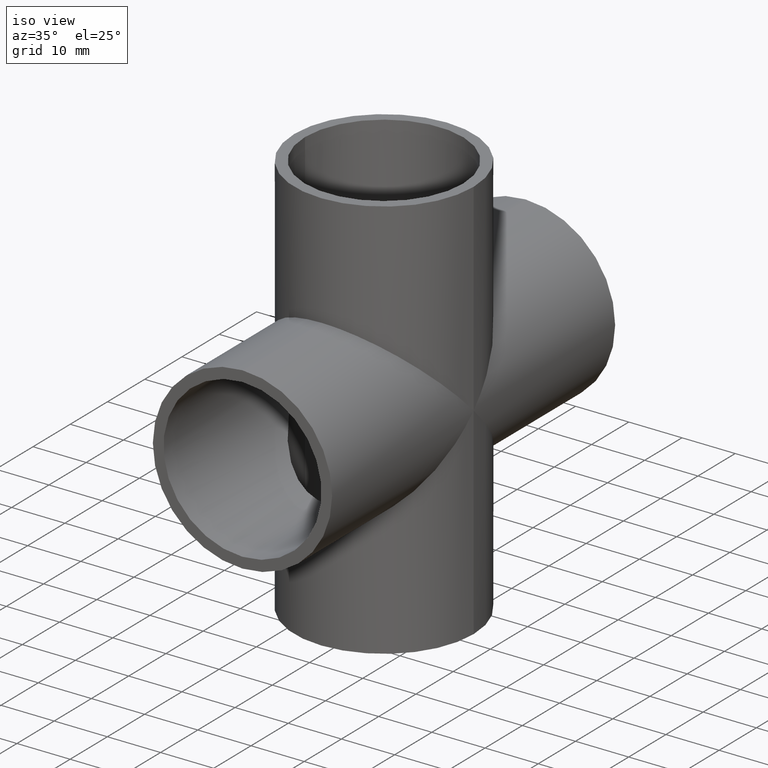
[diagram: clean part render]
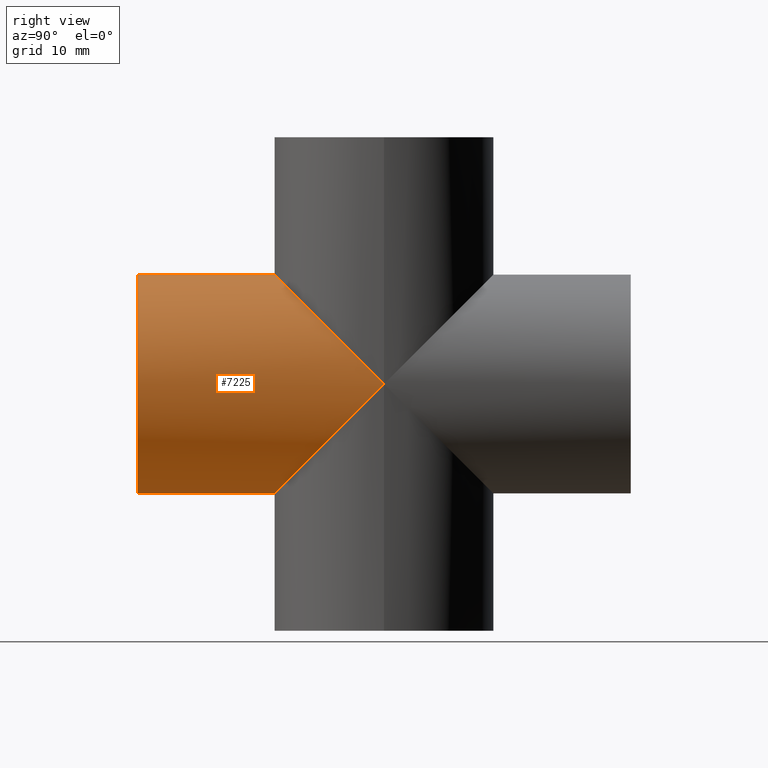
[diagram: tour spotlight — one face highlighted and labeled with its STEP entity id]
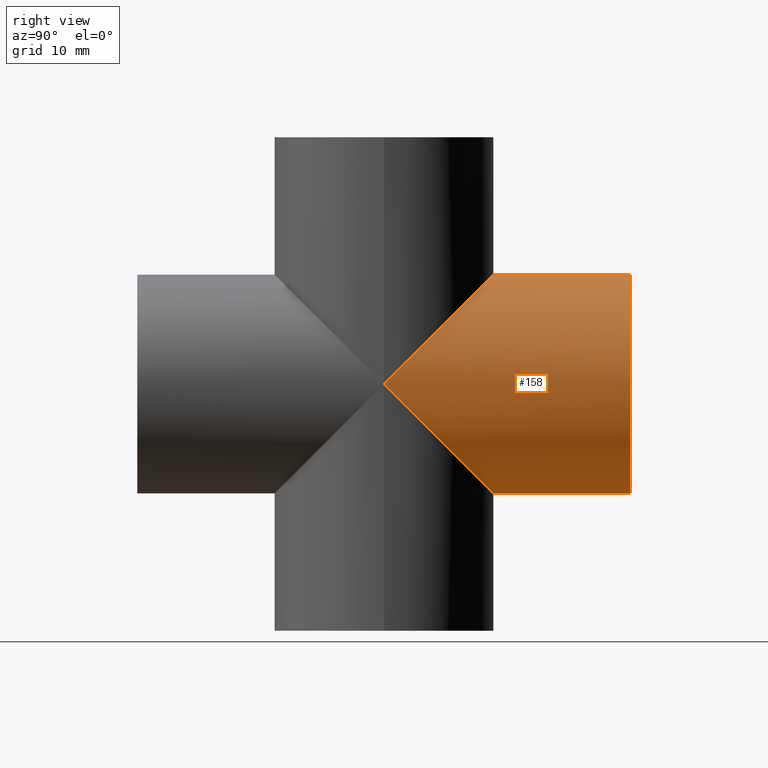
[diagram: tour spotlight — one face highlighted and labeled with its STEP entity id]
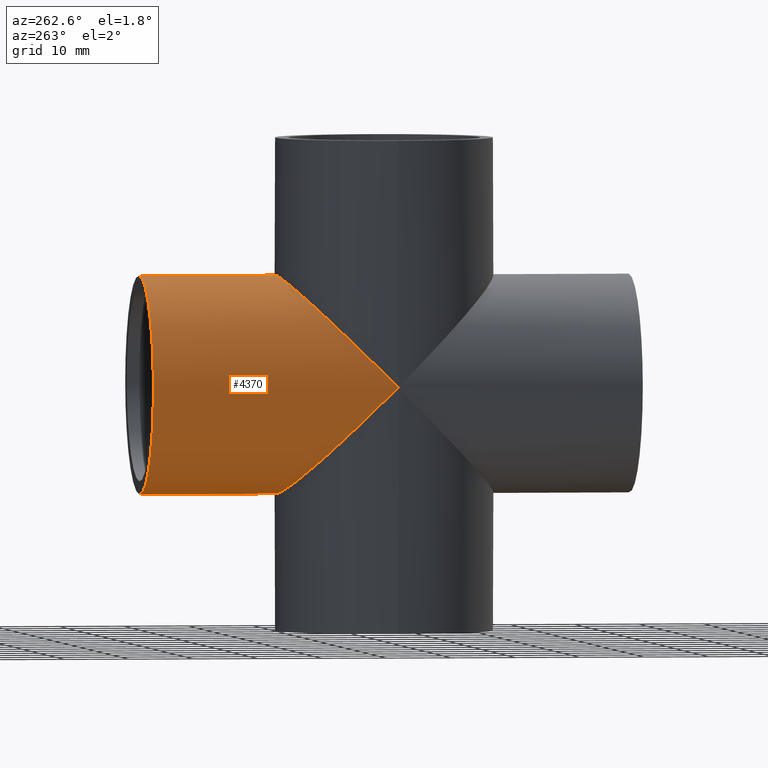
[diagram: tour spotlight — one face highlighted and labeled with its STEP entity id]
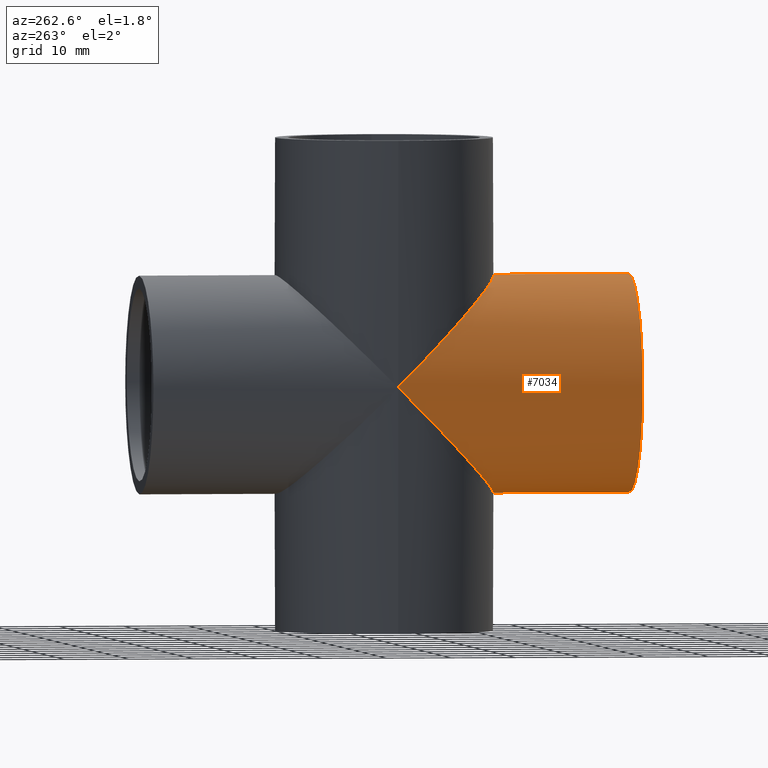
[diagram: tour spotlight — one face highlighted and labeled with its STEP entity id]
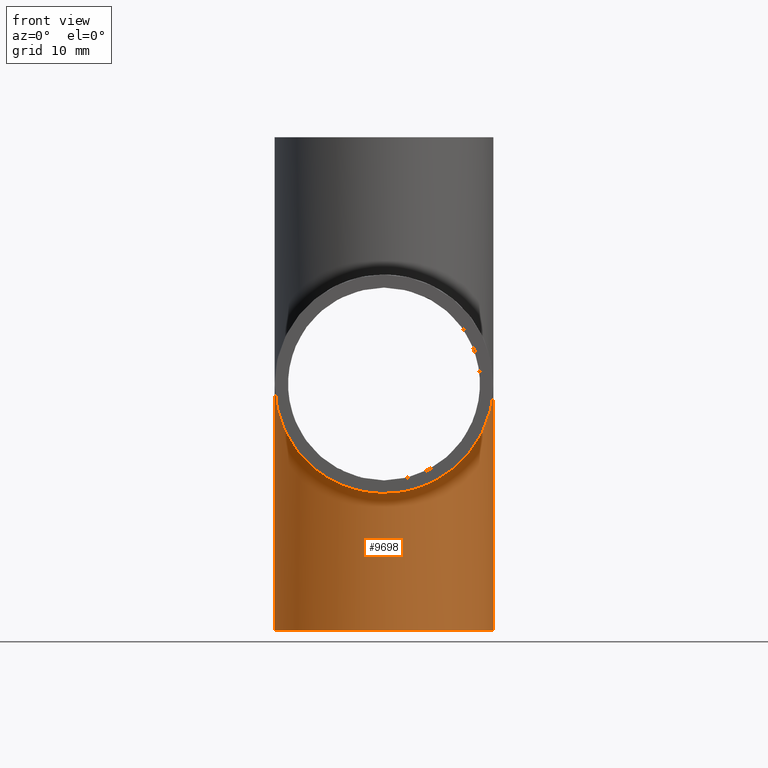
[diagram: tour spotlight — one face highlighted and labeled with its STEP entity id]
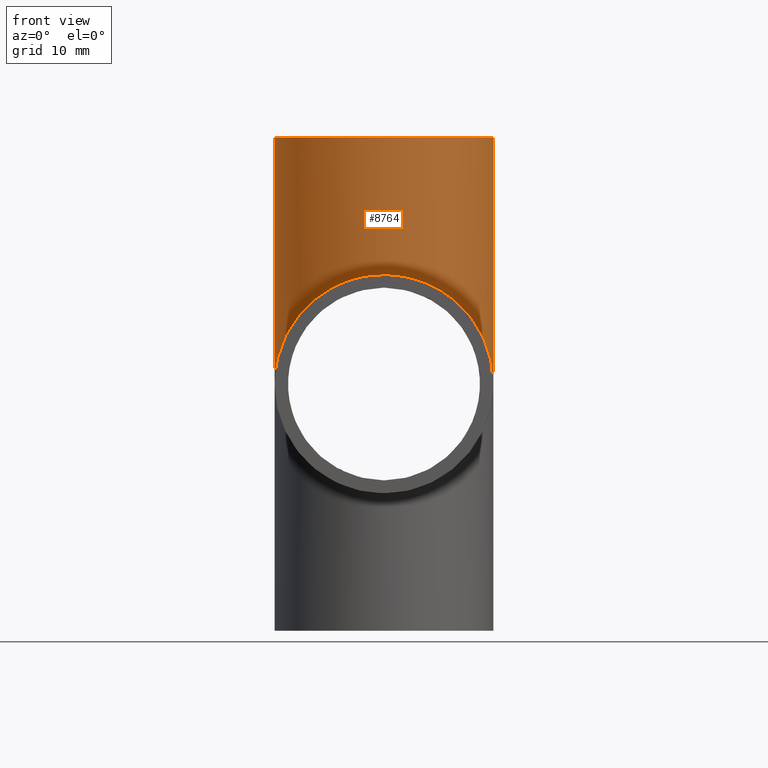
[diagram: tour spotlight — one face highlighted and labeled with its STEP entity id]
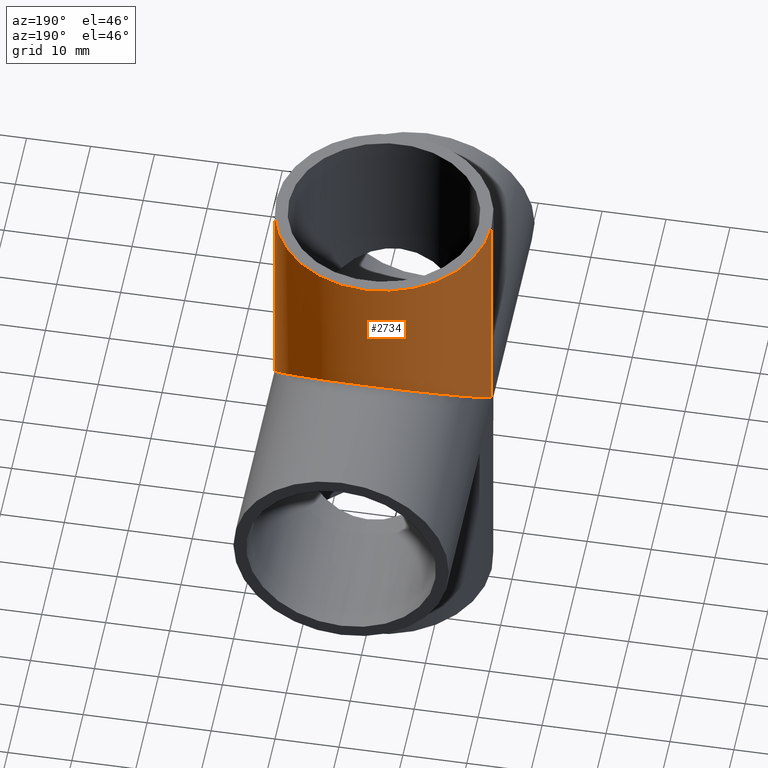
[diagram: tour spotlight — one face highlighted and labeled with its STEP entity id]
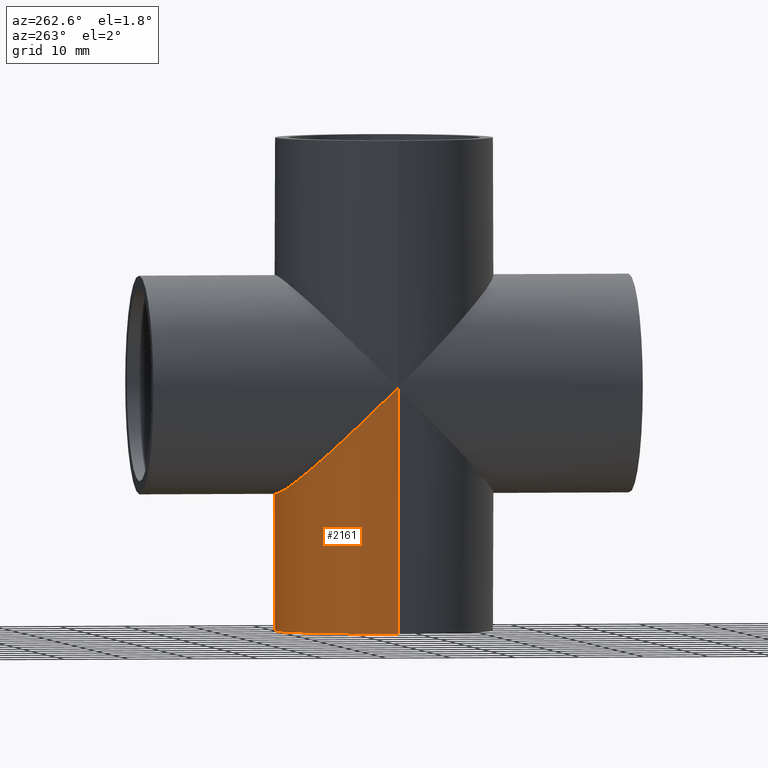
[diagram: tour spotlight — one face highlighted and labeled with its STEP entity id]
A machine part: a face-by-face anatomy tour. The part has 241 B-rep faces; the first image is the clean iso view, then the 8 largest visible faces are spotlighted one at a time (largest first), each with its STEP entity span.

Face 1 — right view, entity #7225. In plain terms, the highlighted cylindrical surface (partial cylindrical patch) has radius 16.85 mm, axis along (-0, -1, -0).
Definition (entity closure, byte-faithful):
#339 = DIRECTION ( 'NONE',  ( 0.0000000000000000000, 0.0000000000000000000, -1.000000000000000000 ) ) ;
#342 = CARTESIAN_POINT ( 'NONE',  ( 16.85000000000000100, -9.870501474013348500, 9.870501474013348500 ) ) ;
#388 = CARTESIAN_POINT ( 'NONE',  ( 16.85000000000000500, 0.0000000000000000000, 0.0000000000000000000 ) ) ;
#866 = DIRECTION ( 'NONE',  ( -0.0000000000000000000, -1.000000000000000000, -0.0000000000000000000 ) ) ;
#1621 = ORIENTED_EDGE ( 'NONE', *, *, #6990, .T. ) ;
#1629 = CARTESIAN_POINT ( 'NONE',  ( 0.0000000000000000000, -38.00000000000000000, 0.0000000000000000000 ) ) ;
#1681 = VERTEX_POINT ( 'NONE', #10968 ) ;
#1865 = DIRECTION ( 'NONE',  ( -0.0000000000000000000, -1.000000000000000000, -0.0000000000000000000 ) ) ;
#1896 = VERTEX_POINT ( 'NONE', #388 ) ;
#2118 = CARTESIAN_POINT ( 'NONE',  ( 9.870501474013352100, -16.85000000000000100, 16.85000000000000100 ) ) ;
#2147 = DIRECTION ( 'NONE',  ( -0.0000000000000000000, -1.000000000000000000, -0.0000000000000000000 ) ) ;
#2514 = DIRECTION ( 'NONE',  ( 0.0000000000000000000, 0.0000000000000000000, 1.000000000000000000 ) ) ;
#2555 = EDGE_LOOP ( 'NONE', ( #5570, #1621, #5529, #5144, #7583 ) ) ;
#3132 = CARTESIAN_POINT ( 'NONE',  ( 2.063529856563290200E-015, -16.85000000000000500, 16.85000000000000100 ) ) ;
#4098 = AXIS2_PLACEMENT_3D ( 'NONE', #1629, #7686, #2514 ) ;
#4136 = EDGE_CURVE ( 'NONE', #10116, #8126, #8016, .T. ) ;
#4262 =( BOUNDED_CURVE ( )  B_SPLINE_CURVE ( 3, ( #7808, #5221, #9596, #4368 ),
 .UNSPECIFIED., .F., .T. ) 
 B_SPLINE_CURVE_WITH_KNOTS ( ( 4, 4 ),
 ( 0.0000000000000000000, 1.570796326794896800 ),
 .UNSPECIFIED. ) 
 CURVE ( )  GEOMETRIC_REPRESENTATION_ITEM ( )  RATIONAL_B_SPLINE_CURVE ( ( 1.000000000000000000, 0.8047378541243649400, 0.8047378541243649400, 1.000000000000000000 ) ) 
 REPRESENTATION_ITEM ( '' )  );
#4368 = CARTESIAN_POINT ( 'NONE',  ( 16.85000000000000500, 0.0000000000000000000, 0.0000000000000000000 ) ) ;
#5144 = ORIENTED_EDGE ( 'NONE', *, *, #10428, .F. ) ;
#5221 = CARTESIAN_POINT ( 'NONE',  ( 9.870501474013352100, -16.85000000000000100, -16.85000000000000100 ) ) ;
#5529 = ORIENTED_EDGE ( 'NONE', *, *, #4136, .T. ) ;
#5570 = ORIENTED_EDGE ( 'NONE', *, *, #11044, .T. ) ;
#5753 = AXIS2_PLACEMENT_3D ( 'NONE', #8198, #2147, #339 ) ;
#6064 = CARTESIAN_POINT ( 'NONE',  ( 0.0000000000000000000, 38.00000000000000000, -16.85000000000000100 ) ) ;
#6229 = LINE ( 'NONE', #8902, #8272 ) ;
#6430 = CARTESIAN_POINT ( 'NONE',  ( 16.85000000000000500, 0.0000000000000000000, 0.0000000000000000000 ) ) ;
#6661 = CYLINDRICAL_SURFACE ( 'NONE', #5753, 16.85000000000000100 ) ;
#6990 = EDGE_CURVE ( 'NONE', #8435, #10116, #6229, .T. ) ;
#6991 = LINE ( 'NONE', #6064, #9348 ) ;
#7225 = ADVANCED_FACE ( 'NONE', ( #9269 ), #6661, .T. ) ;
#7583 = ORIENTED_EDGE ( 'NONE', *, *, #10463, .T. ) ;
#7686 = DIRECTION ( 'NONE',  ( 0.0000000000000000000, 1.000000000000000000, 0.0000000000000000000 ) ) ;
#7741 = CARTESIAN_POINT ( 'NONE',  ( 0.0000000000000000000, -38.00000000000000000, -16.85000000000000100 ) ) ;
#7785 =( BOUNDED_CURVE ( )  B_SPLINE_CURVE ( 3, ( #6430, #342, #2118, #8168 ),
 .UNSPECIFIED., .F., .T. ) 
 B_SPLINE_CURVE_WITH_KNOTS ( ( 4, 4 ),
 ( 1.570796326794896600, 3.141592653589793100 ),
 .UNSPECIFIED. ) 
 CURVE ( )  GEOMETRIC_REPRESENTATION_ITEM ( )  RATIONAL_B_SPLINE_CURVE ( ( 1.000000000000000000, 0.8047378541243649400, 0.8047378541243649400, 1.000000000000000000 ) ) 
 REPRESENTATION_ITEM ( '' )  );
#7808 = CARTESIAN_POINT ( 'NONE',  ( 0.0000000000000000000, -16.85000000000000500, -16.85000000000000100 ) ) ;
#8016 = CIRCLE ( 'NONE', #4098, 16.85000000000000100 ) ;
#8126 = VERTEX_POINT ( 'NONE', #7741 ) ;
#8168 = CARTESIAN_POINT ( 'NONE',  ( 2.063529856563290200E-015, -16.85000000000000500, 16.85000000000000100 ) ) ;
#8198 = CARTESIAN_POINT ( 'NONE',  ( 0.0000000000000000000, 38.00000000000000000, 0.0000000000000000000 ) ) ;
#8272 = VECTOR ( 'NONE', #1865, 1000.000000000000000 ) ;
#8435 = VERTEX_POINT ( 'NONE', #3132 ) ;
#8902 = CARTESIAN_POINT ( 'NONE',  ( 2.063529856563290200E-015, 38.00000000000000000, 16.85000000000000100 ) ) ;
#9269 = FACE_OUTER_BOUND ( 'NONE', #2555, .T. ) ;
#9348 = VECTOR ( 'NONE', #866, 1000.000000000000000 ) ;
#9596 = CARTESIAN_POINT ( 'NONE',  ( 16.85000000000000100, -9.870501474013346800, -9.870501474013346800 ) ) ;
#9915 = CARTESIAN_POINT ( 'NONE',  ( 2.063529856563290200E-015, -38.00000000000000000, 16.85000000000000100 ) ) ;
#10116 = VERTEX_POINT ( 'NONE', #9915 ) ;
#10428 = EDGE_CURVE ( 'NONE', #1681, #8126, #6991, .T. ) ;
#10463 = EDGE_CURVE ( 'NONE', #1681, #1896, #4262, .T. ) ;
#10968 = CARTESIAN_POINT ( 'NONE',  ( 0.0000000000000000000, -16.85000000000000500, -16.85000000000000100 ) ) ;
#11044 = EDGE_CURVE ( 'NONE', #1896, #8435, #7785, .T. ) ;

Face 2 — right view, entity #158. In plain terms, the highlighted cylindrical surface (partial cylindrical patch) has radius 16.85 mm, axis along (-0, -1, -0).
Definition (entity closure, byte-faithful):
#142 = CARTESIAN_POINT ( 'NONE',  ( 16.85000000000000500, 0.0000000000000000000, 0.0000000000000000000 ) ) ;
#158 = ADVANCED_FACE ( 'NONE', ( #7546 ), #2667, .T. ) ;
#180 = CARTESIAN_POINT ( 'NONE',  ( 2.063529856563290200E-015, 38.00000000000000000, 16.85000000000000100 ) ) ;
#388 = CARTESIAN_POINT ( 'NONE',  ( 16.85000000000000500, 0.0000000000000000000, 0.0000000000000000000 ) ) ;
#528 = AXIS2_PLACEMENT_3D ( 'NONE', #8366, #6118, #3582 ) ;
#1014 = CARTESIAN_POINT ( 'NONE',  ( 9.870501474013352100, 16.85000000000000100, -16.85000000000000100 ) ) ;
#1400 = CARTESIAN_POINT ( 'NONE',  ( 0.0000000000000000000, 38.00000000000000000, -16.85000000000000100 ) ) ;
#1611 =( BOUNDED_CURVE ( )  B_SPLINE_CURVE ( 3, ( #2129, #7318, #7358, #2167 ),
 .UNSPECIFIED., .F., .T. ) 
 B_SPLINE_CURVE_WITH_KNOTS ( ( 4, 4 ),
 ( 3.141592653589793100, 4.712388980384689700 ),
 .UNSPECIFIED. ) 
 CURVE ( )  GEOMETRIC_REPRESENTATION_ITEM ( )  RATIONAL_B_SPLINE_CURVE ( ( 1.000000000000000000, 0.8047378541243649400, 0.8047378541243649400, 1.000000000000000000 ) ) 
 REPRESENTATION_ITEM ( '' )  );
#1667 = ORIENTED_EDGE ( 'NONE', *, *, #7766, .F. ) ;
#1896 = VERTEX_POINT ( 'NONE', #388 ) ;
#2129 = CARTESIAN_POINT ( 'NONE',  ( 2.063529856563290200E-015, 16.85000000000000100, 16.85000000000000100 ) ) ;
#2167 = CARTESIAN_POINT ( 'NONE',  ( 16.85000000000000500, 0.0000000000000000000, 0.0000000000000000000 ) ) ;
#2276 = ORIENTED_EDGE ( 'NONE', *, *, #10779, .T. ) ;
#2551 = CIRCLE ( 'NONE', #8361, 16.85000000000000100 ) ;
#2580 = ORIENTED_EDGE ( 'NONE', *, *, #8994, .F. ) ;
#2667 = CYLINDRICAL_SURFACE ( 'NONE', #528, 16.85000000000000100 ) ;
#2751 = VERTEX_POINT ( 'NONE', #4631 ) ;
#2797 = VECTOR ( 'NONE', #7087, 1000.000000000000000 ) ;
#3582 = DIRECTION ( 'NONE',  ( 0.0000000000000000000, 0.0000000000000000000, -1.000000000000000000 ) ) ;
#4242 = DIRECTION ( 'NONE',  ( 0.0000000000000000000, 1.000000000000000000, 0.0000000000000000000 ) ) ;
#4631 = CARTESIAN_POINT ( 'NONE',  ( 2.063529856563290200E-015, 38.00000000000000000, 16.85000000000000100 ) ) ;
#4711 = CARTESIAN_POINT ( 'NONE',  ( 0.0000000000000000000, 38.00000000000000000, -16.85000000000000100 ) ) ;
#5660 = ORIENTED_EDGE ( 'NONE', *, *, #7530, .T. ) ;
#5931 = EDGE_CURVE ( 'NONE', #6901, #1896, #1611, .T. ) ;
#6118 = DIRECTION ( 'NONE',  ( -0.0000000000000000000, -1.000000000000000000, -0.0000000000000000000 ) ) ;
#6205 = CARTESIAN_POINT ( 'NONE',  ( 16.85000000000000500, 9.870501474013346800, -9.870501474013346800 ) ) ;
#6498 = CARTESIAN_POINT ( 'NONE',  ( 0.0000000000000000000, 16.85000000000000100, -16.85000000000000100 ) ) ;
#6765 = VERTEX_POINT ( 'NONE', #6498 ) ;
#6901 = VERTEX_POINT ( 'NONE', #8421 ) ;
#7087 = DIRECTION ( 'NONE',  ( -0.0000000000000000000, -1.000000000000000000, -0.0000000000000000000 ) ) ;
#7090 = CARTESIAN_POINT ( 'NONE',  ( 0.0000000000000000000, 16.85000000000000100, -16.85000000000000100 ) ) ;
#7318 = CARTESIAN_POINT ( 'NONE',  ( 9.870501474013348500, 16.85000000000000100, 16.85000000000000100 ) ) ;
#7358 = CARTESIAN_POINT ( 'NONE',  ( 16.84999999999999800, 9.870501474013353900, 9.870501474013353900 ) ) ;
#7487 = ORIENTED_EDGE ( 'NONE', *, *, #5931, .T. ) ;
#7530 = EDGE_CURVE ( 'NONE', #1896, #6765, #9027, .T. ) ;
#7546 = FACE_OUTER_BOUND ( 'NONE', #8153, .T. ) ;
#7649 = VERTEX_POINT ( 'NONE', #4711 ) ;
#7766 = EDGE_CURVE ( 'NONE', #7649, #6765, #8519, .T. ) ;
#8153 = EDGE_LOOP ( 'NONE', ( #2580, #2276, #7487, #5660, #1667 ) ) ;
#8361 = AXIS2_PLACEMENT_3D ( 'NONE', #9464, #4242, #10333 ) ;
#8366 = CARTESIAN_POINT ( 'NONE',  ( 0.0000000000000000000, 38.00000000000000000, 0.0000000000000000000 ) ) ;
#8421 = CARTESIAN_POINT ( 'NONE',  ( 2.063529856563290200E-015, 16.85000000000000100, 16.85000000000000100 ) ) ;
#8519 = LINE ( 'NONE', #1400, #10584 ) ;
#8994 = EDGE_CURVE ( 'NONE', #2751, #7649, #2551, .T. ) ;
#9027 =( BOUNDED_CURVE ( )  B_SPLINE_CURVE ( 3, ( #142, #6205, #1014, #7090 ),
 .UNSPECIFIED., .F., .F. ) 
 B_SPLINE_CURVE_WITH_KNOTS ( ( 4, 4 ),
 ( 4.712388980384689700, 6.283185307179586200 ),
 .UNSPECIFIED. ) 
 CURVE ( )  GEOMETRIC_REPRESENTATION_ITEM ( )  RATIONAL_B_SPLINE_CURVE ( ( 1.000000000000000000, 0.8047378541243649400, 0.8047378541243649400, 1.000000000000000000 ) ) 
 REPRESENTATION_ITEM ( '' )  );
#9246 = DIRECTION ( 'NONE',  ( -0.0000000000000000000, -1.000000000000000000, -0.0000000000000000000 ) ) ;
#9464 = CARTESIAN_POINT ( 'NONE',  ( 0.0000000000000000000, 38.00000000000000000, 0.0000000000000000000 ) ) ;
#9742 = LINE ( 'NONE', #180, #2797 ) ;
#10333 = DIRECTION ( 'NONE',  ( 0.0000000000000000000, 0.0000000000000000000, 1.000000000000000000 ) ) ;
#10584 = VECTOR ( 'NONE', #9246, 1000.000000000000000 ) ;
#10779 = EDGE_CURVE ( 'NONE', #2751, #6901, #9742, .T. ) ;

Face 3 — auxiliary view, entity #4370. In plain terms, the highlighted cylindrical surface (partial cylindrical patch) has radius 16.85 mm, axis along (-0, -1, -0).
Definition (entity closure, byte-faithful):
#180 = CARTESIAN_POINT ( 'NONE',  ( 2.063529856563290200E-015, 38.00000000000000000, 16.85000000000000100 ) ) ;
#598 = CARTESIAN_POINT ( 'NONE',  ( -16.85000000000000500, 0.0000000000000000000, 0.0000000000000000000 ) ) ;
#1254 = CARTESIAN_POINT ( 'NONE',  ( -16.85000000000000500, 0.0000000000000000000, 0.0000000000000000000 ) ) ;
#1354 = CARTESIAN_POINT ( 'NONE',  ( 2.063529856563290200E-015, 16.85000000000000100, 16.85000000000000100 ) ) ;
#1400 = CARTESIAN_POINT ( 'NONE',  ( 0.0000000000000000000, 38.00000000000000000, -16.85000000000000100 ) ) ;
#1471 = VERTEX_POINT ( 'NONE', #598 ) ;
#1936 = ORIENTED_EDGE ( 'NONE', *, *, #7766, .T. ) ;
#2203 = CARTESIAN_POINT ( 'NONE',  ( -16.85000000000000500, 0.0000000000000000000, 0.0000000000000000000 ) ) ;
#2751 = VERTEX_POINT ( 'NONE', #4631 ) ;
#2797 = VECTOR ( 'NONE', #7087, 1000.000000000000000 ) ;
#2900 =( BOUNDED_CURVE ( )  B_SPLINE_CURVE ( 3, ( #10800, #9059, #6449, #1254 ),
 .UNSPECIFIED., .F., .F. ) 
 B_SPLINE_CURVE_WITH_KNOTS ( ( 4, 4 ),
 ( 0.0000000000000000000, 1.570796326794896800 ),
 .UNSPECIFIED. ) 
 CURVE ( )  GEOMETRIC_REPRESENTATION_ITEM ( )  RATIONAL_B_SPLINE_CURVE ( ( 1.000000000000000000, 0.8047378541243649400, 0.8047378541243649400, 1.000000000000000000 ) ) 
 REPRESENTATION_ITEM ( '' )  );
#3303 = EDGE_LOOP ( 'NONE', ( #10432, #5304, #1936, #9651, #5438 ) ) ;
#3613 = DIRECTION ( 'NONE',  ( -0.0000000000000000000, -1.000000000000000000, -0.0000000000000000000 ) ) ;
#3767 = EDGE_CURVE ( 'NONE', #1471, #6901, #3888, .T. ) ;
#3816 = CIRCLE ( 'NONE', #7066, 16.85000000000000100 ) ;
#3888 =( BOUNDED_CURVE ( )  B_SPLINE_CURVE ( 3, ( #2203, #10904, #6565, #1354 ),
 .UNSPECIFIED., .F., .F. ) 
 B_SPLINE_CURVE_WITH_KNOTS ( ( 4, 4 ),
 ( 1.570796326794896600, 3.141592653589793100 ),
 .UNSPECIFIED. ) 
 CURVE ( )  GEOMETRIC_REPRESENTATION_ITEM ( )  RATIONAL_B_SPLINE_CURVE ( ( 1.000000000000000000, 0.8047378541243649400, 0.8047378541243649400, 1.000000000000000000 ) ) 
 REPRESENTATION_ITEM ( '' )  );
#4295 = CARTESIAN_POINT ( 'NONE',  ( 0.0000000000000000000, 38.00000000000000000, 0.0000000000000000000 ) ) ;
#4370 = ADVANCED_FACE ( 'NONE', ( #6927 ), #9004, .T. ) ;
#4423 = CARTESIAN_POINT ( 'NONE',  ( 0.0000000000000000000, 38.00000000000000000, 0.0000000000000000000 ) ) ;
#4631 = CARTESIAN_POINT ( 'NONE',  ( 2.063529856563290200E-015, 38.00000000000000000, 16.85000000000000100 ) ) ;
#4711 = CARTESIAN_POINT ( 'NONE',  ( 0.0000000000000000000, 38.00000000000000000, -16.85000000000000100 ) ) ;
#5177 = DIRECTION ( 'NONE',  ( 0.0000000000000000000, 0.0000000000000000000, 1.000000000000000000 ) ) ;
#5304 = ORIENTED_EDGE ( 'NONE', *, *, #6528, .F. ) ;
#5438 = ORIENTED_EDGE ( 'NONE', *, *, #3767, .T. ) ;
#6449 = CARTESIAN_POINT ( 'NONE',  ( -16.85000000000000100, 9.870501474013346800, -9.870501474013346800 ) ) ;
#6498 = CARTESIAN_POINT ( 'NONE',  ( 0.0000000000000000000, 16.85000000000000100, -16.85000000000000100 ) ) ;
#6528 = EDGE_CURVE ( 'NONE', #7649, #2751, #3816, .T. ) ;
#6565 = CARTESIAN_POINT ( 'NONE',  ( -9.870501474013352100, 16.85000000000000100, 16.85000000000000100 ) ) ;
#6765 = VERTEX_POINT ( 'NONE', #6498 ) ;
#6901 = VERTEX_POINT ( 'NONE', #8421 ) ;
#6927 = FACE_OUTER_BOUND ( 'NONE', #3303, .T. ) ;
#7066 = AXIS2_PLACEMENT_3D ( 'NONE', #4295, #10398, #5177 ) ;
#7087 = DIRECTION ( 'NONE',  ( -0.0000000000000000000, -1.000000000000000000, -0.0000000000000000000 ) ) ;
#7621 = EDGE_CURVE ( 'NONE', #6765, #1471, #2900, .T. ) ;
#7649 = VERTEX_POINT ( 'NONE', #4711 ) ;
#7766 = EDGE_CURVE ( 'NONE', #7649, #6765, #8519, .T. ) ;
#8152 = AXIS2_PLACEMENT_3D ( 'NONE', #4423, #3613, #10523 ) ;
#8421 = CARTESIAN_POINT ( 'NONE',  ( 2.063529856563290200E-015, 16.85000000000000100, 16.85000000000000100 ) ) ;
#8519 = LINE ( 'NONE', #1400, #10584 ) ;
#9004 = CYLINDRICAL_SURFACE ( 'NONE', #8152, 16.85000000000000100 ) ;
#9059 = CARTESIAN_POINT ( 'NONE',  ( -9.870501474013352100, 16.85000000000000100, -16.85000000000000100 ) ) ;
#9246 = DIRECTION ( 'NONE',  ( -0.0000000000000000000, -1.000000000000000000, -0.0000000000000000000 ) ) ;
#9651 = ORIENTED_EDGE ( 'NONE', *, *, #7621, .T. ) ;
#9742 = LINE ( 'NONE', #180, #2797 ) ;
#10398 = DIRECTION ( 'NONE',  ( 0.0000000000000000000, 1.000000000000000000, 0.0000000000000000000 ) ) ;
#10432 = ORIENTED_EDGE ( 'NONE', *, *, #10779, .F. ) ;
#10523 = DIRECTION ( 'NONE',  ( 0.0000000000000000000, 0.0000000000000000000, -1.000000000000000000 ) ) ;
#10584 = VECTOR ( 'NONE', #9246, 1000.000000000000000 ) ;
#10779 = EDGE_CURVE ( 'NONE', #2751, #6901, #9742, .T. ) ;
#10800 = CARTESIAN_POINT ( 'NONE',  ( 0.0000000000000000000, 16.85000000000000100, -16.85000000000000100 ) ) ;
#10904 = CARTESIAN_POINT ( 'NONE',  ( -16.85000000000000100, 9.870501474013348500, 9.870501474013348500 ) ) ;

Face 4 — auxiliary view, entity #7034. In plain terms, the highlighted cylindrical surface (partial cylindrical patch) has radius 16.85 mm, axis along (-0, -1, -0).
Definition (entity closure, byte-faithful):
#12 = CARTESIAN_POINT ( 'NONE',  ( -16.85000000000000500, 0.0000000000000000000, 0.0000000000000000000 ) ) ;
#233 = CARTESIAN_POINT ( 'NONE',  ( 0.0000000000000000000, -16.85000000000000500, -16.85000000000000100 ) ) ;
#598 = CARTESIAN_POINT ( 'NONE',  ( -16.85000000000000500, 0.0000000000000000000, 0.0000000000000000000 ) ) ;
#808 = AXIS2_PLACEMENT_3D ( 'NONE', #4405, #6138, #941 ) ;
#866 = DIRECTION ( 'NONE',  ( -0.0000000000000000000, -1.000000000000000000, -0.0000000000000000000 ) ) ;
#941 = DIRECTION ( 'NONE',  ( 0.0000000000000000000, 0.0000000000000000000, -1.000000000000000000 ) ) ;
#957 = CARTESIAN_POINT ( 'NONE',  ( -9.870501474013348500, -16.85000000000000100, 16.85000000000000100 ) ) ;
#1471 = VERTEX_POINT ( 'NONE', #598 ) ;
#1502 = EDGE_CURVE ( 'NONE', #8435, #1471, #8061, .T. ) ;
#1660 = ORIENTED_EDGE ( 'NONE', *, *, #10428, .T. ) ;
#1681 = VERTEX_POINT ( 'NONE', #10968 ) ;
#1865 = DIRECTION ( 'NONE',  ( -0.0000000000000000000, -1.000000000000000000, -0.0000000000000000000 ) ) ;
#2339 = EDGE_CURVE ( 'NONE', #1471, #1681, #7569, .T. ) ;
#2578 = CARTESIAN_POINT ( 'NONE',  ( -16.84999999999999800, -9.870501474013353900, 9.870501474013353900 ) ) ;
#3132 = CARTESIAN_POINT ( 'NONE',  ( 2.063529856563290200E-015, -16.85000000000000500, 16.85000000000000100 ) ) ;
#3193 = CARTESIAN_POINT ( 'NONE',  ( 0.0000000000000000000, -38.00000000000000000, 0.0000000000000000000 ) ) ;
#3223 = CARTESIAN_POINT ( 'NONE',  ( 2.063529856563290200E-015, -16.85000000000000500, 16.85000000000000100 ) ) ;
#3306 = ORIENTED_EDGE ( 'NONE', *, *, #6825, .T. ) ;
#4061 = DIRECTION ( 'NONE',  ( 0.0000000000000000000, 0.0000000000000000000, 1.000000000000000000 ) ) ;
#4130 = CARTESIAN_POINT ( 'NONE',  ( -16.85000000000000500, 0.0000000000000000000, 0.0000000000000000000 ) ) ;
#4405 = CARTESIAN_POINT ( 'NONE',  ( 0.0000000000000000000, 38.00000000000000000, 0.0000000000000000000 ) ) ;
#4992 = CARTESIAN_POINT ( 'NONE',  ( -16.85000000000000500, -9.870501474013346800, -9.870501474013346800 ) ) ;
#5115 = AXIS2_PLACEMENT_3D ( 'NONE', #3193, #9303, #4061 ) ;
#5965 = FACE_OUTER_BOUND ( 'NONE', #10087, .T. ) ;
#6064 = CARTESIAN_POINT ( 'NONE',  ( 0.0000000000000000000, 38.00000000000000000, -16.85000000000000100 ) ) ;
#6138 = DIRECTION ( 'NONE',  ( -0.0000000000000000000, -1.000000000000000000, -0.0000000000000000000 ) ) ;
#6229 = LINE ( 'NONE', #8902, #8272 ) ;
#6825 = EDGE_CURVE ( 'NONE', #8126, #10116, #9400, .T. ) ;
#6990 = EDGE_CURVE ( 'NONE', #8435, #10116, #6229, .T. ) ;
#6991 = LINE ( 'NONE', #6064, #9348 ) ;
#6997 = CARTESIAN_POINT ( 'NONE',  ( -9.870501474013352100, -16.85000000000000100, -16.85000000000000100 ) ) ;
#7034 = ADVANCED_FACE ( 'NONE', ( #5965 ), #10080, .T. ) ;
#7569 =( BOUNDED_CURVE ( )  B_SPLINE_CURVE ( 3, ( #12, #4992, #6997, #233 ),
 .UNSPECIFIED., .F., .F. ) 
 B_SPLINE_CURVE_WITH_KNOTS ( ( 4, 4 ),
 ( 4.712388980384689700, 6.283185307179586200 ),
 .UNSPECIFIED. ) 
 CURVE ( )  GEOMETRIC_REPRESENTATION_ITEM ( )  RATIONAL_B_SPLINE_CURVE ( ( 1.000000000000000000, 0.8047378541243649400, 0.8047378541243649400, 1.000000000000000000 ) ) 
 REPRESENTATION_ITEM ( '' )  );
#7741 = CARTESIAN_POINT ( 'NONE',  ( 0.0000000000000000000, -38.00000000000000000, -16.85000000000000100 ) ) ;
#8061 =( BOUNDED_CURVE ( )  B_SPLINE_CURVE ( 3, ( #3223, #957, #2578, #4130 ),
 .UNSPECIFIED., .F., .F. ) 
 B_SPLINE_CURVE_WITH_KNOTS ( ( 4, 4 ),
 ( 3.141592653589793100, 4.712388980384689700 ),
 .UNSPECIFIED. ) 
 CURVE ( )  GEOMETRIC_REPRESENTATION_ITEM ( )  RATIONAL_B_SPLINE_CURVE ( ( 1.000000000000000000, 0.8047378541243649400, 0.8047378541243649400, 1.000000000000000000 ) ) 
 REPRESENTATION_ITEM ( '' )  );
#8126 = VERTEX_POINT ( 'NONE', #7741 ) ;
#8272 = VECTOR ( 'NONE', #1865, 1000.000000000000000 ) ;
#8370 = ORIENTED_EDGE ( 'NONE', *, *, #6990, .F. ) ;
#8435 = VERTEX_POINT ( 'NONE', #3132 ) ;
#8902 = CARTESIAN_POINT ( 'NONE',  ( 2.063529856563290200E-015, 38.00000000000000000, 16.85000000000000100 ) ) ;
#9303 = DIRECTION ( 'NONE',  ( 0.0000000000000000000, 1.000000000000000000, 0.0000000000000000000 ) ) ;
#9348 = VECTOR ( 'NONE', #866, 1000.000000000000000 ) ;
#9400 = CIRCLE ( 'NONE', #5115, 16.85000000000000100 ) ;
#9441 = ORIENTED_EDGE ( 'NONE', *, *, #1502, .T. ) ;
#9915 = CARTESIAN_POINT ( 'NONE',  ( 2.063529856563290200E-015, -38.00000000000000000, 16.85000000000000100 ) ) ;
#10080 = CYLINDRICAL_SURFACE ( 'NONE', #808, 16.85000000000000100 ) ;
#10087 = EDGE_LOOP ( 'NONE', ( #8370, #9441, #10121, #1660, #3306 ) ) ;
#10116 = VERTEX_POINT ( 'NONE', #9915 ) ;
#10121 = ORIENTED_EDGE ( 'NONE', *, *, #2339, .T. ) ;
#10428 = EDGE_CURVE ( 'NONE', #1681, #8126, #6991, .T. ) ;
#10968 = CARTESIAN_POINT ( 'NONE',  ( 0.0000000000000000000, -16.85000000000000500, -16.85000000000000100 ) ) ;

Face 5 — front view, entity #9698. In plain terms, the highlighted cylindrical surface (partial cylindrical patch) has radius 16.85 mm, axis along (-0, -0, -1).
Definition (entity closure, byte-faithful):
#12 = CARTESIAN_POINT ( 'NONE',  ( -16.85000000000000500, 0.0000000000000000000, 0.0000000000000000000 ) ) ;
#233 = CARTESIAN_POINT ( 'NONE',  ( 0.0000000000000000000, -16.85000000000000500, -16.85000000000000100 ) ) ;
#388 = CARTESIAN_POINT ( 'NONE',  ( 16.85000000000000500, 0.0000000000000000000, 0.0000000000000000000 ) ) ;
#580 = EDGE_CURVE ( 'NONE', #1471, #2151, #1020, .T. ) ;
#598 = CARTESIAN_POINT ( 'NONE',  ( -16.85000000000000500, 0.0000000000000000000, 0.0000000000000000000 ) ) ;
#758 = DIRECTION ( 'NONE',  ( 0.0000000000000000000, 0.0000000000000000000, 1.000000000000000000 ) ) ;
#805 = CARTESIAN_POINT ( 'NONE',  ( 0.0000000000000000000, 0.0000000000000000000, 38.00000000000000000 ) ) ;
#1020 = LINE ( 'NONE', #6609, #10292 ) ;
#1363 = DIRECTION ( 'NONE',  ( -0.0000000000000000000, -0.0000000000000000000, -1.000000000000000000 ) ) ;
#1471 = VERTEX_POINT ( 'NONE', #598 ) ;
#1509 = VERTEX_POINT ( 'NONE', #3368 ) ;
#1656 = DIRECTION ( 'NONE',  ( -1.000000000000000000, 0.0000000000000000000, 0.0000000000000000000 ) ) ;
#1681 = VERTEX_POINT ( 'NONE', #10968 ) ;
#1731 = CARTESIAN_POINT ( 'NONE',  ( 16.85000000000000500, 2.063529856563290600E-015, 38.00000000000000000 ) ) ;
#1896 = VERTEX_POINT ( 'NONE', #388 ) ;
#1953 = ORIENTED_EDGE ( 'NONE', *, *, #580, .T. ) ;
#2084 = ORIENTED_EDGE ( 'NONE', *, *, #7931, .F. ) ;
#2151 = VERTEX_POINT ( 'NONE', #2538 ) ;
#2339 = EDGE_CURVE ( 'NONE', #1471, #1681, #7569, .T. ) ;
#2360 = ORIENTED_EDGE ( 'NONE', *, *, #8109, .T. ) ;
#2434 = EDGE_LOOP ( 'NONE', ( #2084, #2937, #6142, #1953, #2360 ) ) ;
#2538 = CARTESIAN_POINT ( 'NONE',  ( -16.85000000000000500, 0.0000000000000000000, -38.00000000000000000 ) ) ;
#2615 = DIRECTION ( 'NONE',  ( -0.0000000000000000000, -0.0000000000000000000, -1.000000000000000000 ) ) ;
#2827 = VECTOR ( 'NONE', #2615, 1000.000000000000000 ) ;
#2937 = ORIENTED_EDGE ( 'NONE', *, *, #10463, .F. ) ;
#3368 = CARTESIAN_POINT ( 'NONE',  ( 16.85000000000000500, 2.063529856563290600E-015, -38.00000000000000000 ) ) ;
#4262 =( BOUNDED_CURVE ( )  B_SPLINE_CURVE ( 3, ( #7808, #5221, #9596, #4368 ),
 .UNSPECIFIED., .F., .T. ) 
 B_SPLINE_CURVE_WITH_KNOTS ( ( 4, 4 ),
 ( 0.0000000000000000000, 1.570796326794896800 ),
 .UNSPECIFIED. ) 
 CURVE ( )  GEOMETRIC_REPRESENTATION_ITEM ( )  RATIONAL_B_SPLINE_CURVE ( ( 1.000000000000000000, 0.8047378541243649400, 0.8047378541243649400, 1.000000000000000000 ) ) 
 REPRESENTATION_ITEM ( '' )  );
#4368 = CARTESIAN_POINT ( 'NONE',  ( 16.85000000000000500, 0.0000000000000000000, 0.0000000000000000000 ) ) ;
#4992 = CARTESIAN_POINT ( 'NONE',  ( -16.85000000000000500, -9.870501474013346800, -9.870501474013346800 ) ) ;
#5221 = CARTESIAN_POINT ( 'NONE',  ( 9.870501474013352100, -16.85000000000000100, -16.85000000000000100 ) ) ;
#5966 = CARTESIAN_POINT ( 'NONE',  ( 0.0000000000000000000, 0.0000000000000000000, -38.00000000000000000 ) ) ;
#6009 = DIRECTION ( 'NONE',  ( -0.0000000000000000000, -0.0000000000000000000, -1.000000000000000000 ) ) ;
#6142 = ORIENTED_EDGE ( 'NONE', *, *, #2339, .F. ) ;
#6178 = AXIS2_PLACEMENT_3D ( 'NONE', #805, #6009, #1656 ) ;
#6609 = CARTESIAN_POINT ( 'NONE',  ( -16.85000000000000500, 0.0000000000000000000, 38.00000000000000000 ) ) ;
#6844 = DIRECTION ( 'NONE',  ( 1.000000000000000000, 0.0000000000000000000, 0.0000000000000000000 ) ) ;
#6997 = CARTESIAN_POINT ( 'NONE',  ( -9.870501474013352100, -16.85000000000000100, -16.85000000000000100 ) ) ;
#7437 = LINE ( 'NONE', #1731, #2827 ) ;
#7569 =( BOUNDED_CURVE ( )  B_SPLINE_CURVE ( 3, ( #12, #4992, #6997, #233 ),
 .UNSPECIFIED., .F., .F. ) 
 B_SPLINE_CURVE_WITH_KNOTS ( ( 4, 4 ),
 ( 4.712388980384689700, 6.283185307179586200 ),
 .UNSPECIFIED. ) 
 CURVE ( )  GEOMETRIC_REPRESENTATION_ITEM ( )  RATIONAL_B_SPLINE_CURVE ( ( 1.000000000000000000, 0.8047378541243649400, 0.8047378541243649400, 1.000000000000000000 ) ) 
 REPRESENTATION_ITEM ( '' )  );
#7808 = CARTESIAN_POINT ( 'NONE',  ( 0.0000000000000000000, -16.85000000000000500, -16.85000000000000100 ) ) ;
#7931 = EDGE_CURVE ( 'NONE', #1896, #1509, #7437, .T. ) ;
#8109 = EDGE_CURVE ( 'NONE', #2151, #1509, #8654, .T. ) ;
#8654 = CIRCLE ( 'NONE', #10005, 16.85000000000000500 ) ;
#9082 = FACE_OUTER_BOUND ( 'NONE', #2434, .T. ) ;
#9596 = CARTESIAN_POINT ( 'NONE',  ( 16.85000000000000100, -9.870501474013346800, -9.870501474013346800 ) ) ;
#9698 = ADVANCED_FACE ( 'NONE', ( #9082 ), #10562, .T. ) ;
#10005 = AXIS2_PLACEMENT_3D ( 'NONE', #5966, #758, #6844 ) ;
#10292 = VECTOR ( 'NONE', #1363, 1000.000000000000000 ) ;
#10463 = EDGE_CURVE ( 'NONE', #1681, #1896, #4262, .T. ) ;
#10562 = CYLINDRICAL_SURFACE ( 'NONE', #6178, 16.85000000000000500 ) ;
#10968 = CARTESIAN_POINT ( 'NONE',  ( 0.0000000000000000000, -16.85000000000000500, -16.85000000000000100 ) ) ;

Face 6 — front view, entity #8764. In plain terms, the highlighted cylindrical surface (partial cylindrical patch) has radius 16.85 mm, axis along (-0, -0, -1).
Definition (entity closure, byte-faithful):
#342 = CARTESIAN_POINT ( 'NONE',  ( 16.85000000000000100, -9.870501474013348500, 9.870501474013348500 ) ) ;
#388 = CARTESIAN_POINT ( 'NONE',  ( 16.85000000000000500, 0.0000000000000000000, 0.0000000000000000000 ) ) ;
#598 = CARTESIAN_POINT ( 'NONE',  ( -16.85000000000000500, 0.0000000000000000000, 0.0000000000000000000 ) ) ;
#783 = ORIENTED_EDGE ( 'NONE', *, *, #6915, .T. ) ;
#789 = DIRECTION ( 'NONE',  ( -0.0000000000000000000, -0.0000000000000000000, -1.000000000000000000 ) ) ;
#830 = CIRCLE ( 'NONE', #7921, 16.85000000000000500 ) ;
#916 = ORIENTED_EDGE ( 'NONE', *, *, #1502, .F. ) ;
#957 = CARTESIAN_POINT ( 'NONE',  ( -9.870501474013348500, -16.85000000000000100, 16.85000000000000100 ) ) ;
#1097 = LINE ( 'NONE', #10345, #10101 ) ;
#1135 = DIRECTION ( 'NONE',  ( -1.000000000000000000, 0.0000000000000000000, 0.0000000000000000000 ) ) ;
#1471 = VERTEX_POINT ( 'NONE', #598 ) ;
#1502 = EDGE_CURVE ( 'NONE', #8435, #1471, #8061, .T. ) ;
#1896 = VERTEX_POINT ( 'NONE', #388 ) ;
#2118 = CARTESIAN_POINT ( 'NONE',  ( 9.870501474013352100, -16.85000000000000100, 16.85000000000000100 ) ) ;
#2352 = CARTESIAN_POINT ( 'NONE',  ( 16.85000000000000500, 2.063529856563290600E-015, 38.00000000000000000 ) ) ;
#2578 = CARTESIAN_POINT ( 'NONE',  ( -16.84999999999999800, -9.870501474013353900, 9.870501474013353900 ) ) ;
#2759 = EDGE_LOOP ( 'NONE', ( #8530, #8251, #783, #916, #3098 ) ) ;
#2898 = VERTEX_POINT ( 'NONE', #2352 ) ;
#3098 = ORIENTED_EDGE ( 'NONE', *, *, #11044, .F. ) ;
#3132 = CARTESIAN_POINT ( 'NONE',  ( 2.063529856563290200E-015, -16.85000000000000500, 16.85000000000000100 ) ) ;
#3223 = CARTESIAN_POINT ( 'NONE',  ( 2.063529856563290200E-015, -16.85000000000000500, 16.85000000000000100 ) ) ;
#3801 = DIRECTION ( 'NONE',  ( 0.0000000000000000000, 0.0000000000000000000, 1.000000000000000000 ) ) ;
#4130 = CARTESIAN_POINT ( 'NONE',  ( -16.85000000000000500, 0.0000000000000000000, 0.0000000000000000000 ) ) ;
#4145 = EDGE_CURVE ( 'NONE', #2898, #1896, #1097, .T. ) ;
#4858 = EDGE_CURVE ( 'NONE', #5781, #2898, #830, .T. ) ;
#4898 = AXIS2_PLACEMENT_3D ( 'NONE', #5541, #8937, #1135 ) ;
#5122 = DIRECTION ( 'NONE',  ( -0.0000000000000000000, -0.0000000000000000000, -1.000000000000000000 ) ) ;
#5541 = CARTESIAN_POINT ( 'NONE',  ( 0.0000000000000000000, 0.0000000000000000000, 38.00000000000000000 ) ) ;
#5670 = FACE_OUTER_BOUND ( 'NONE', #2759, .T. ) ;
#5781 = VERTEX_POINT ( 'NONE', #6126 ) ;
#6126 = CARTESIAN_POINT ( 'NONE',  ( -16.85000000000000500, 0.0000000000000000000, 38.00000000000000000 ) ) ;
#6430 = CARTESIAN_POINT ( 'NONE',  ( 16.85000000000000500, 0.0000000000000000000, 0.0000000000000000000 ) ) ;
#6523 = LINE ( 'NONE', #6868, #11156 ) ;
#6868 = CARTESIAN_POINT ( 'NONE',  ( -16.85000000000000500, 0.0000000000000000000, 38.00000000000000000 ) ) ;
#6915 = EDGE_CURVE ( 'NONE', #5781, #1471, #6523, .T. ) ;
#7687 = CYLINDRICAL_SURFACE ( 'NONE', #4898, 16.85000000000000500 ) ;
#7785 =( BOUNDED_CURVE ( )  B_SPLINE_CURVE ( 3, ( #6430, #342, #2118, #8168 ),
 .UNSPECIFIED., .F., .T. ) 
 B_SPLINE_CURVE_WITH_KNOTS ( ( 4, 4 ),
 ( 1.570796326794896600, 3.141592653589793100 ),
 .UNSPECIFIED. ) 
 CURVE ( )  GEOMETRIC_REPRESENTATION_ITEM ( )  RATIONAL_B_SPLINE_CURVE ( ( 1.000000000000000000, 0.8047378541243649400, 0.8047378541243649400, 1.000000000000000000 ) ) 
 REPRESENTATION_ITEM ( '' )  );
#7921 = AXIS2_PLACEMENT_3D ( 'NONE', #9032, #3801, #9897 ) ;
#8061 =( BOUNDED_CURVE ( )  B_SPLINE_CURVE ( 3, ( #3223, #957, #2578, #4130 ),
 .UNSPECIFIED., .F., .F. ) 
 B_SPLINE_CURVE_WITH_KNOTS ( ( 4, 4 ),
 ( 3.141592653589793100, 4.712388980384689700 ),
 .UNSPECIFIED. ) 
 CURVE ( )  GEOMETRIC_REPRESENTATION_ITEM ( )  RATIONAL_B_SPLINE_CURVE ( ( 1.000000000000000000, 0.8047378541243649400, 0.8047378541243649400, 1.000000000000000000 ) ) 
 REPRESENTATION_ITEM ( '' )  );
#8168 = CARTESIAN_POINT ( 'NONE',  ( 2.063529856563290200E-015, -16.85000000000000500, 16.85000000000000100 ) ) ;
#8251 = ORIENTED_EDGE ( 'NONE', *, *, #4858, .F. ) ;
#8435 = VERTEX_POINT ( 'NONE', #3132 ) ;
#8530 = ORIENTED_EDGE ( 'NONE', *, *, #4145, .F. ) ;
#8764 = ADVANCED_FACE ( 'NONE', ( #5670 ), #7687, .T. ) ;
#8937 = DIRECTION ( 'NONE',  ( -0.0000000000000000000, -0.0000000000000000000, -1.000000000000000000 ) ) ;
#9032 = CARTESIAN_POINT ( 'NONE',  ( 0.0000000000000000000, 0.0000000000000000000, 38.00000000000000000 ) ) ;
#9897 = DIRECTION ( 'NONE',  ( 1.000000000000000000, 0.0000000000000000000, 0.0000000000000000000 ) ) ;
#10101 = VECTOR ( 'NONE', #5122, 1000.000000000000000 ) ;
#10345 = CARTESIAN_POINT ( 'NONE',  ( 16.85000000000000500, 2.063529856563290600E-015, 38.00000000000000000 ) ) ;
#11044 = EDGE_CURVE ( 'NONE', #1896, #8435, #7785, .T. ) ;
#11156 = VECTOR ( 'NONE', #789, 1000.000000000000000 ) ;

Face 7 — auxiliary view, entity #2734. In plain terms, the highlighted cylindrical surface (partial cylindrical patch) has radius 16.85 mm, axis along (-0, -0, -1).
Definition (entity closure, byte-faithful):
#148 = CIRCLE ( 'NONE', #9578, 16.85000000000000500 ) ;
#297 = DIRECTION ( 'NONE',  ( 0.0000000000000000000, 0.0000000000000000000, 1.000000000000000000 ) ) ;
#388 = CARTESIAN_POINT ( 'NONE',  ( 16.85000000000000500, 0.0000000000000000000, 0.0000000000000000000 ) ) ;
#598 = CARTESIAN_POINT ( 'NONE',  ( -16.85000000000000500, 0.0000000000000000000, 0.0000000000000000000 ) ) ;
#789 = DIRECTION ( 'NONE',  ( -0.0000000000000000000, -0.0000000000000000000, -1.000000000000000000 ) ) ;
#1097 = LINE ( 'NONE', #10345, #10101 ) ;
#1327 = ORIENTED_EDGE ( 'NONE', *, *, #3767, .F. ) ;
#1354 = CARTESIAN_POINT ( 'NONE',  ( 2.063529856563290200E-015, 16.85000000000000100, 16.85000000000000100 ) ) ;
#1468 = ORIENTED_EDGE ( 'NONE', *, *, #6915, .F. ) ;
#1471 = VERTEX_POINT ( 'NONE', #598 ) ;
#1611 =( BOUNDED_CURVE ( )  B_SPLINE_CURVE ( 3, ( #2129, #7318, #7358, #2167 ),
 .UNSPECIFIED., .F., .T. ) 
 B_SPLINE_CURVE_WITH_KNOTS ( ( 4, 4 ),
 ( 3.141592653589793100, 4.712388980384689700 ),
 .UNSPECIFIED. ) 
 CURVE ( )  GEOMETRIC_REPRESENTATION_ITEM ( )  RATIONAL_B_SPLINE_CURVE ( ( 1.000000000000000000, 0.8047378541243649400, 0.8047378541243649400, 1.000000000000000000 ) ) 
 REPRESENTATION_ITEM ( '' )  );
#1803 = CYLINDRICAL_SURFACE ( 'NONE', #3017, 16.85000000000000500 ) ;
#1896 = VERTEX_POINT ( 'NONE', #388 ) ;
#2007 = CARTESIAN_POINT ( 'NONE',  ( 0.0000000000000000000, 0.0000000000000000000, 38.00000000000000000 ) ) ;
#2091 = FACE_OUTER_BOUND ( 'NONE', #4770, .T. ) ;
#2129 = CARTESIAN_POINT ( 'NONE',  ( 2.063529856563290200E-015, 16.85000000000000100, 16.85000000000000100 ) ) ;
#2167 = CARTESIAN_POINT ( 'NONE',  ( 16.85000000000000500, 0.0000000000000000000, 0.0000000000000000000 ) ) ;
#2203 = CARTESIAN_POINT ( 'NONE',  ( -16.85000000000000500, 0.0000000000000000000, 0.0000000000000000000 ) ) ;
#2352 = CARTESIAN_POINT ( 'NONE',  ( 16.85000000000000500, 2.063529856563290600E-015, 38.00000000000000000 ) ) ;
#2734 = ADVANCED_FACE ( 'NONE', ( #2091 ), #1803, .T. ) ;
#2898 = VERTEX_POINT ( 'NONE', #2352 ) ;
#3017 = AXIS2_PLACEMENT_3D ( 'NONE', #2007, #3756, #10680 ) ;
#3756 = DIRECTION ( 'NONE',  ( -0.0000000000000000000, -0.0000000000000000000, -1.000000000000000000 ) ) ;
#3767 = EDGE_CURVE ( 'NONE', #1471, #6901, #3888, .T. ) ;
#3888 =( BOUNDED_CURVE ( )  B_SPLINE_CURVE ( 3, ( #2203, #10904, #6565, #1354 ),
 .UNSPECIFIED., .F., .F. ) 
 B_SPLINE_CURVE_WITH_KNOTS ( ( 4, 4 ),
 ( 1.570796326794896600, 3.141592653589793100 ),
 .UNSPECIFIED. ) 
 CURVE ( )  GEOMETRIC_REPRESENTATION_ITEM ( )  RATIONAL_B_SPLINE_CURVE ( ( 1.000000000000000000, 0.8047378541243649400, 0.8047378541243649400, 1.000000000000000000 ) ) 
 REPRESENTATION_ITEM ( '' )  );
#3899 = EDGE_CURVE ( 'NONE', #2898, #5781, #148, .T. ) ;
#4145 = EDGE_CURVE ( 'NONE', #2898, #1896, #1097, .T. ) ;
#4275 = ORIENTED_EDGE ( 'NONE', *, *, #5931, .F. ) ;
#4770 = EDGE_LOOP ( 'NONE', ( #5266, #8581, #4275, #1327, #1468 ) ) ;
#5122 = DIRECTION ( 'NONE',  ( -0.0000000000000000000, -0.0000000000000000000, -1.000000000000000000 ) ) ;
#5266 = ORIENTED_EDGE ( 'NONE', *, *, #3899, .F. ) ;
#5505 = CARTESIAN_POINT ( 'NONE',  ( 0.0000000000000000000, 0.0000000000000000000, 38.00000000000000000 ) ) ;
#5781 = VERTEX_POINT ( 'NONE', #6126 ) ;
#5931 = EDGE_CURVE ( 'NONE', #6901, #1896, #1611, .T. ) ;
#6126 = CARTESIAN_POINT ( 'NONE',  ( -16.85000000000000500, 0.0000000000000000000, 38.00000000000000000 ) ) ;
#6373 = DIRECTION ( 'NONE',  ( 1.000000000000000000, 0.0000000000000000000, 0.0000000000000000000 ) ) ;
#6523 = LINE ( 'NONE', #6868, #11156 ) ;
#6565 = CARTESIAN_POINT ( 'NONE',  ( -9.870501474013352100, 16.85000000000000100, 16.85000000000000100 ) ) ;
#6868 = CARTESIAN_POINT ( 'NONE',  ( -16.85000000000000500, 0.0000000000000000000, 38.00000000000000000 ) ) ;
#6901 = VERTEX_POINT ( 'NONE', #8421 ) ;
#6915 = EDGE_CURVE ( 'NONE', #5781, #1471, #6523, .T. ) ;
#7318 = CARTESIAN_POINT ( 'NONE',  ( 9.870501474013348500, 16.85000000000000100, 16.85000000000000100 ) ) ;
#7358 = CARTESIAN_POINT ( 'NONE',  ( 16.84999999999999800, 9.870501474013353900, 9.870501474013353900 ) ) ;
#8421 = CARTESIAN_POINT ( 'NONE',  ( 2.063529856563290200E-015, 16.85000000000000100, 16.85000000000000100 ) ) ;
#8581 = ORIENTED_EDGE ( 'NONE', *, *, #4145, .T. ) ;
#9578 = AXIS2_PLACEMENT_3D ( 'NONE', #5505, #297, #6373 ) ;
#10101 = VECTOR ( 'NONE', #5122, 1000.000000000000000 ) ;
#10345 = CARTESIAN_POINT ( 'NONE',  ( 16.85000000000000500, 2.063529856563290600E-015, 38.00000000000000000 ) ) ;
#10680 = DIRECTION ( 'NONE',  ( -1.000000000000000000, 0.0000000000000000000, 0.0000000000000000000 ) ) ;
#10904 = CARTESIAN_POINT ( 'NONE',  ( -16.85000000000000100, 9.870501474013348500, 9.870501474013348500 ) ) ;
#11156 = VECTOR ( 'NONE', #789, 1000.000000000000000 ) ;

Face 8 — auxiliary view, entity #2161. In plain terms, the highlighted cylindrical surface (partial cylindrical patch) has radius 16.85 mm, axis along (-0, -0, -1).
Definition (entity closure, byte-faithful):
#115 = EDGE_CURVE ( 'NONE', #1509, #2151, #9888, .T. ) ;
#142 = CARTESIAN_POINT ( 'NONE',  ( 16.85000000000000500, 0.0000000000000000000, 0.0000000000000000000 ) ) ;
#173 = DIRECTION ( 'NONE',  ( 0.0000000000000000000, 0.0000000000000000000, 1.000000000000000000 ) ) ;
#388 = CARTESIAN_POINT ( 'NONE',  ( 16.85000000000000500, 0.0000000000000000000, 0.0000000000000000000 ) ) ;
#580 = EDGE_CURVE ( 'NONE', #1471, #2151, #1020, .T. ) ;
#598 = CARTESIAN_POINT ( 'NONE',  ( -16.85000000000000500, 0.0000000000000000000, 0.0000000000000000000 ) ) ;
#871 = AXIS2_PLACEMENT_3D ( 'NONE', #7604, #987, #7065 ) ;
#987 = DIRECTION ( 'NONE',  ( -0.0000000000000000000, -0.0000000000000000000, -1.000000000000000000 ) ) ;
#1014 = CARTESIAN_POINT ( 'NONE',  ( 9.870501474013352100, 16.85000000000000100, -16.85000000000000100 ) ) ;
#1020 = LINE ( 'NONE', #6609, #10292 ) ;
#1254 = CARTESIAN_POINT ( 'NONE',  ( -16.85000000000000500, 0.0000000000000000000, 0.0000000000000000000 ) ) ;
#1363 = DIRECTION ( 'NONE',  ( -0.0000000000000000000, -0.0000000000000000000, -1.000000000000000000 ) ) ;
#1471 = VERTEX_POINT ( 'NONE', #598 ) ;
#1509 = VERTEX_POINT ( 'NONE', #3368 ) ;
#1731 = CARTESIAN_POINT ( 'NONE',  ( 16.85000000000000500, 2.063529856563290600E-015, 38.00000000000000000 ) ) ;
#1788 = ORIENTED_EDGE ( 'NONE', *, *, #115, .T. ) ;
#1896 = VERTEX_POINT ( 'NONE', #388 ) ;
#2151 = VERTEX_POINT ( 'NONE', #2538 ) ;
#2161 = ADVANCED_FACE ( 'NONE', ( #3048 ), #2772, .T. ) ;
#2538 = CARTESIAN_POINT ( 'NONE',  ( -16.85000000000000500, 0.0000000000000000000, -38.00000000000000000 ) ) ;
#2615 = DIRECTION ( 'NONE',  ( -0.0000000000000000000, -0.0000000000000000000, -1.000000000000000000 ) ) ;
#2772 = CYLINDRICAL_SURFACE ( 'NONE', #871, 16.85000000000000500 ) ;
#2827 = VECTOR ( 'NONE', #2615, 1000.000000000000000 ) ;
#2900 =( BOUNDED_CURVE ( )  B_SPLINE_CURVE ( 3, ( #10800, #9059, #6449, #1254 ),
 .UNSPECIFIED., .F., .F. ) 
 B_SPLINE_CURVE_WITH_KNOTS ( ( 4, 4 ),
 ( 0.0000000000000000000, 1.570796326794896800 ),
 .UNSPECIFIED. ) 
 CURVE ( )  GEOMETRIC_REPRESENTATION_ITEM ( )  RATIONAL_B_SPLINE_CURVE ( ( 1.000000000000000000, 0.8047378541243649400, 0.8047378541243649400, 1.000000000000000000 ) ) 
 REPRESENTATION_ITEM ( '' )  );
#3048 = FACE_OUTER_BOUND ( 'NONE', #4739, .T. ) ;
#3368 = CARTESIAN_POINT ( 'NONE',  ( 16.85000000000000500, 2.063529856563290600E-015, -38.00000000000000000 ) ) ;
#3560 = ORIENTED_EDGE ( 'NONE', *, *, #7931, .T. ) ;
#3970 = ORIENTED_EDGE ( 'NONE', *, *, #7621, .F. ) ;
#4314 = ORIENTED_EDGE ( 'NONE', *, *, #580, .F. ) ;
#4739 = EDGE_LOOP ( 'NONE', ( #8333, #3560, #1788, #4314, #3970 ) ) ;
#6205 = CARTESIAN_POINT ( 'NONE',  ( 16.85000000000000500, 9.870501474013346800, -9.870501474013346800 ) ) ;
#6449 = CARTESIAN_POINT ( 'NONE',  ( -16.85000000000000100, 9.870501474013346800, -9.870501474013346800 ) ) ;
#6498 = CARTESIAN_POINT ( 'NONE',  ( 0.0000000000000000000, 16.85000000000000100, -16.85000000000000100 ) ) ;
#6609 = CARTESIAN_POINT ( 'NONE',  ( -16.85000000000000500, 0.0000000000000000000, 38.00000000000000000 ) ) ;
#6765 = VERTEX_POINT ( 'NONE', #6498 ) ;
#7065 = DIRECTION ( 'NONE',  ( -1.000000000000000000, 0.0000000000000000000, 0.0000000000000000000 ) ) ;
#7090 = CARTESIAN_POINT ( 'NONE',  ( 0.0000000000000000000, 16.85000000000000100, -16.85000000000000100 ) ) ;
#7437 = LINE ( 'NONE', #1731, #2827 ) ;
#7530 = EDGE_CURVE ( 'NONE', #1896, #6765, #9027, .T. ) ;
#7604 = CARTESIAN_POINT ( 'NONE',  ( 0.0000000000000000000, 0.0000000000000000000, 38.00000000000000000 ) ) ;
#7621 = EDGE_CURVE ( 'NONE', #6765, #1471, #2900, .T. ) ;
#7916 = DIRECTION ( 'NONE',  ( 1.000000000000000000, 0.0000000000000000000, 0.0000000000000000000 ) ) ;
#7931 = EDGE_CURVE ( 'NONE', #1896, #1509, #7437, .T. ) ;
#8333 = ORIENTED_EDGE ( 'NONE', *, *, #7530, .F. ) ;
#8912 = AXIS2_PLACEMENT_3D ( 'NONE', #10640, #173, #7916 ) ;
#9027 =( BOUNDED_CURVE ( )  B_SPLINE_CURVE ( 3, ( #142, #6205, #1014, #7090 ),
 .UNSPECIFIED., .F., .F. ) 
 B_SPLINE_CURVE_WITH_KNOTS ( ( 4, 4 ),
 ( 4.712388980384689700, 6.283185307179586200 ),
 .UNSPECIFIED. ) 
 CURVE ( )  GEOMETRIC_REPRESENTATION_ITEM ( )  RATIONAL_B_SPLINE_CURVE ( ( 1.000000000000000000, 0.8047378541243649400, 0.8047378541243649400, 1.000000000000000000 ) ) 
 REPRESENTATION_ITEM ( '' )  );
#9059 = CARTESIAN_POINT ( 'NONE',  ( -9.870501474013352100, 16.85000000000000100, -16.85000000000000100 ) ) ;
#9888 = CIRCLE ( 'NONE', #8912, 16.85000000000000500 ) ;
#10292 = VECTOR ( 'NONE', #1363, 1000.000000000000000 ) ;
#10640 = CARTESIAN_POINT ( 'NONE',  ( 0.0000000000000000000, 0.0000000000000000000, -38.00000000000000000 ) ) ;
#10800 = CARTESIAN_POINT ( 'NONE',  ( 0.0000000000000000000, 16.85000000000000100, -16.85000000000000100 ) ) ;